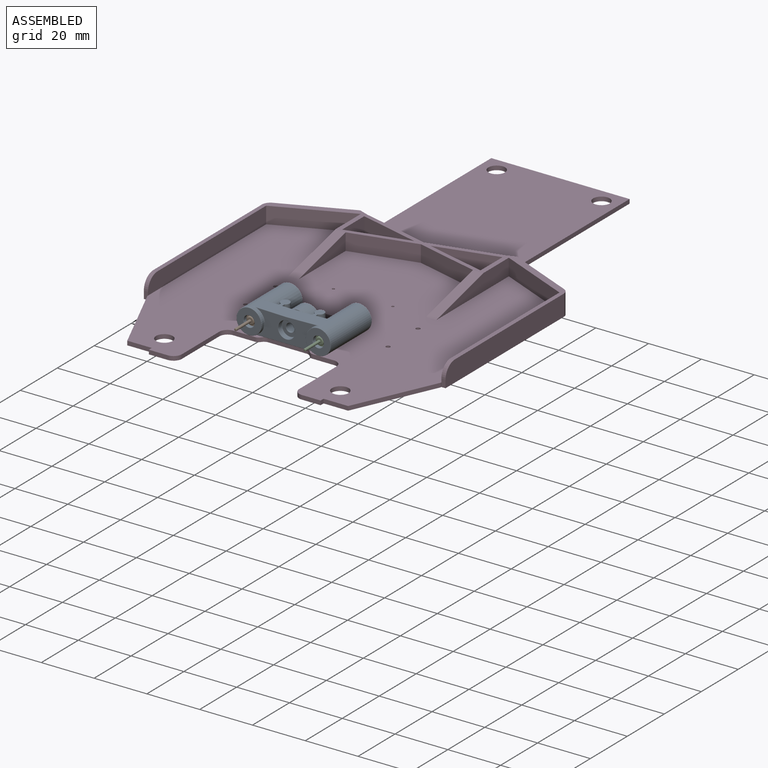
[diagram: assembled view]
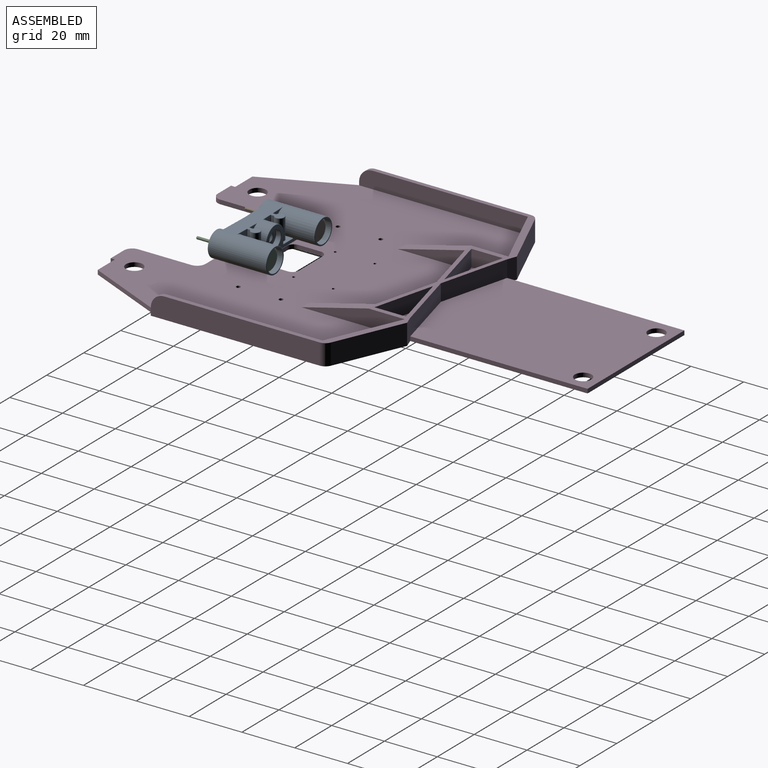
[diagram: assembled view, second angle]
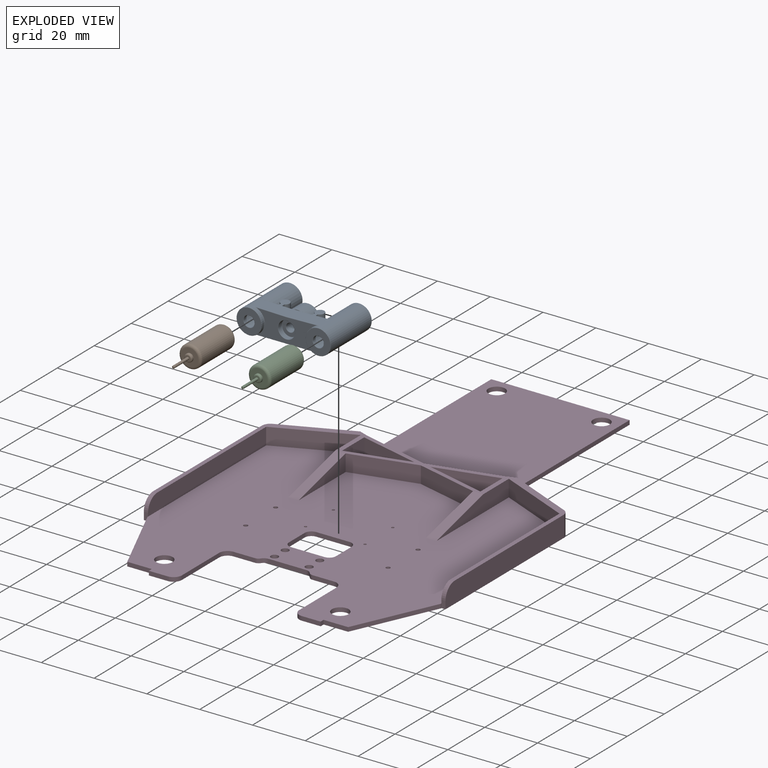
[diagram: exploded view]
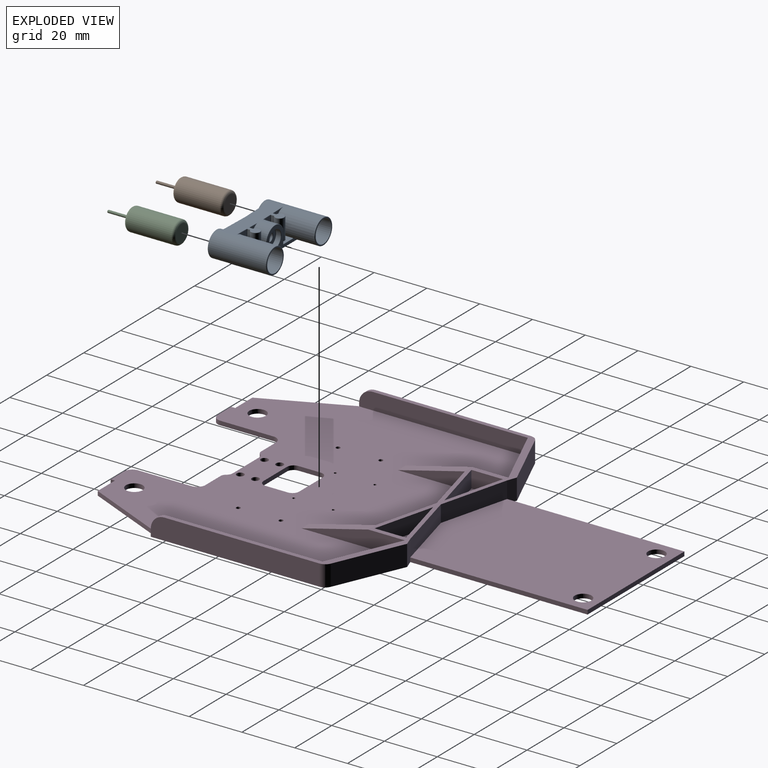
[diagram: exploded view, second angle]
ASSEMBLY  parts=4 mates=3
PART A: 160 faces, bbox 22.3x36.6x10.8 mm
  f0: plane 8.5x8.5mm, normal (1,0,0), area 41.7mm2, adj f118,f159
  f1: plane 8.5x8.5mm, normal (1,0,0), area 41.7mm2, adj f50,f158
  f2: plane 5.63x1.78mm, normal (0,1,0), area 9.9mm2, adj f5,f36,f87,f131,f132,f139,f142
  f3: cylinder r=4.76mm len=9.53mm, axis (-1,0,0), area 101.4mm2, adj f34,f82,f83,f87,f131,f156
  f4: plane 1.94x0.13mm, normal (-1,0,0), area 0.1mm2, adj f82,f86,f152
  f5: bspline ~0.05x0.04mm, area 0mm2, adj f2,f87,f131
  f6: plane 13x10.39mm, normal (0,0.02,1), area 81.7mm2, adj f11,f23,f38,f39,f40,f41,f42,f64
  f7: plane 7.97x4.32mm, normal (1,0,0), area 13.2mm2, adj f10,f11,f31,f78
  f8: cylinder r=1.19mm len=4.83mm, axis (0,0,1), area 36.1mm2, adj f13,f49,f89
  f9: cylinder r=1.75mm len=7.85mm, axis (0,0,-1), area 74.5mm2, adj f69,f70,f76,f77
  f10: cylinder r=0.13mm len=2.25mm, axis (0,-1,0), area 0.4mm2, adj f7,f26,f32,f80
  f11: cylinder r=0.13mm len=4.32mm, axis (0,-1,0.02), area 0.9mm2, adj f6,f7,f38,f75
  f12: plane 2.13x2.13mm, normal (0,0,-1), area 3.6mm2, adj f13,f89
  f13: torus R=1.06mm, axis (0,0,-1), area 1.2mm2, adj f8,f12,f89
  f14: plane 23.09x9.23mm, normal (-1,0,0), area 130.6mm2, adj f29,f42,f47,f53,f124,f136
  f15: extruded ~14.63x9.52mm, area 194.5mm2, adj f18,f23,f30,f31,f35,f43,f46
  f16: plane 7.82x3.6mm, normal (1,0,0), area 10.6mm2, adj f33,f34,f39,f66,f154
  f17: cylinder r=3.17mm len=6.35mm, axis (-1,0,0), area 34.5mm2, adj f52,f57
  f18: plane 24.05x9.3mm, normal (1,0,0), area 53.5mm2, adj f15,f35,f36,f37,f46,f52,f83,f129
  f19: cylinder r=3.17mm len=6.35mm, axis (-1,0,0), area 34.5mm2, adj f53,f54
  f20: plane 6.1x6.1mm, normal (-1,0,0), area 20mm2, adj f54,f55
  f21: cylinder r=1.59mm len=7.29mm, axis (-1,0,0), area 72.7mm2, adj f55,f56
  f22: plane 6.1x6.1mm, normal (1,0,0), area 20mm2, adj f56,f57
  f23: cylinder r=4.76mm len=21.97mm, axis (1,0,0), area 353.4mm2, adj f6,f15,f25,f29,f44,f45,f48
  f24: plane 9.27x9.27mm, normal (1,0,0), area 10.8mm2, adj f43,f44,f158
  f25: plane 25.98x11.51mm, normal (0,0,-1), area 270.9mm2, adj f23,f46,f47,f48,f49,f60,f114,f119
  f26: plane 5.5x5.11mm, normal (0,0,1), area 15.7mm2, adj f10,f30,f33,f37,f71,f77,f81,f154
  f27: cylinder r=2.06mm len=4.13mm, axis (1,0,0), area 17.3mm2, adj f50,f51
  f28: plane 9.27x9.27mm, normal (-1,0,0), area 52.4mm2, adj f45,f51
  f29: torus R=4.89mm, axis (-1,0,0), area 2.7mm2, adj f14,f23,f41,f48
  f30: cylinder r=0.13mm len=5.5mm, axis (-1,0,0), area 1.6mm2, adj f15,f26,f32,f35
  f31: bspline ~8.65x4.99mm, area 2.1mm2, adj f7,f15,f32,f38
  f32: sphere r=0.13mm, area 0mm2, adj f10,f30,f31
  f33: cylinder r=0.13mm len=1.34mm, axis (0,-1,0), area 0.3mm2, adj f16,f26,f68,f154
  f34: torus R=4.89mm, axis (1,0,0), area 1.5mm2, adj f3,f16,f40,f153,f154
  f35: torus R=0.25mm, axis (-1,0,0), area 0.1mm2, adj f15,f18,f30,f37
  f36: cylinder r=0.13mm len=1.93mm, axis (0,0,-1), area 0.4mm2, adj f2,f18,f88,f129
  f37: cylinder r=0.13mm len=5.24mm, axis (0,1,0), area 1mm2, adj f18,f26,f35,f155
  f38: bspline ~1.84x0.25mm, area 0.1mm2, adj f6,f11,f31
  f39: cylinder r=0.13mm len=3.41mm, axis (0,-1,0.02), area 0.7mm2, adj f6,f16,f40,f64
  f40: bspline ~0.78x0.26mm, area 0.1mm2, adj f6,f34,f39,f84
  f41: bspline ~1.84x0.25mm, area 0.1mm2, adj f6,f29,f42
  f42: cylinder r=0.13mm len=11.55mm, axis (0,1,-0.02), area 2.3mm2, adj f6,f14,f41,f124,f151
  f43: bspline ~9.67x7.73mm, area 2.9mm2, adj f15,f24,f44
  f44: torus R=4.64mm, axis (1,0,0), area 3mm2, adj f23,f24,f43
  f45: torus R=4.64mm, axis (-1,0,0), area 5.9mm2, adj f23,f28
  f46: cylinder r=0.13mm len=25.98mm, axis (0,-1,0), area 5mm2, adj f15,f18,f25,f143
  f47: cylinder r=0.13mm len=23.09mm, axis (0,1,0), area 4.6mm2, adj f14,f25,f48,f120
  f48: bspline ~1.62x0.26mm, area 0.1mm2, adj f23,f25,f29,f47
  f49: torus R=1.32mm, axis (0,0,1), area 1.6mm2, adj f8,f25
  f50: torus R=2.19mm, axis (-1,0,0), area 2.6mm2, adj f1,f27
  f51: torus R=2.19mm, axis (-1,0,0), area 2.6mm2, adj f27,f28
  f52: torus R=3.3mm, axis (-1,0,0), area 4mm2, adj f17,f18
  f53: torus R=3.3mm, axis (-1,0,0), area 4mm2, adj f14,f19
  f54: torus R=3.05mm, axis (1,0,0), area 3.9mm2, adj f19,f20
  f55: torus R=1.71mm, axis (1,0,0), area 2mm2, adj f20,f21
  f56: torus R=1.71mm, axis (1,0,0), area 2mm2, adj f21,f22
  f57: torus R=3.05mm, axis (1,0,0), area 3.9mm2, adj f17,f22
  f58: cylinder r=1.19mm len=4.83mm, axis (0,0,-1), area 36.1mm2, adj f60,f61
  f59: plane 2.13x2.13mm, normal (0,0,-1), area 3.6mm2, adj f61
  f60: torus R=1.32mm, axis (0,0,1), area 1.6mm2, adj f25,f58
  f61: torus R=1.06mm, axis (0,0,-1), area 1.4mm2, adj f58,f59
  f62: plane 7.89x1.07mm, normal (0,-1,0.02), area 7.8mm2, adj f72,f76,f78,f81
  f63: plane 7.88x1.2mm, normal (0,1,-0.02), area 8.5mm2, adj f65,f66,f70,f71
  f64: torus R=0.25mm, axis (0,0.02,1), area 0.1mm2, adj f6,f39,f65,f66
  f65: cylinder r=0.13mm len=1.14mm, axis (-1,0,0), area 0.2mm2, adj f6,f63,f64,f67
  f66: cylinder r=0.13mm len=7.82mm, axis (0,-0.02,-1), area 1.6mm2, adj f16,f63,f64,f68
  f67: bspline ~0.29x0.21mm, area 0mm2, adj f6,f65,f69,f70
  f68: sphere r=0.13mm, area 0mm2, adj f33,f66,f71
  f69: bspline ~3.49x3.41mm, area 1.8mm2, adj f6,f9,f67,f73
  f70: bspline ~7.85x0.25mm, area 1.1mm2, adj f9,f63,f67,f74
  f71: cylinder r=0.13mm len=1.04mm, axis (-1,0,0), area 0.2mm2, adj f26,f63,f68,f74
  f72: cylinder r=0.13mm len=0.96mm, axis (1,0,0), area 0.2mm2, adj f6,f62,f73,f75
  f73: bspline ~0.27x0.25mm, area 0mm2, adj f6,f69,f72,f76
  f74: sphere r=0.13mm, area 0mm2, adj f70,f71,f77
  f75: torus R=0.25mm, axis (0,0.02,1), area 0.1mm2, adj f6,f11,f72,f78
  f76: bspline ~7.9x0.27mm, area 1.2mm2, adj f9,f62,f73,f79
  f77: torus R=1.87mm, axis (0,0,-1), area 1.9mm2, adj f9,f26,f74,f79
  f78: cylinder r=0.13mm len=7.86mm, axis (0,0.02,1), area 1.6mm2, adj f7,f62,f75,f80
  f79: sphere r=0.13mm, area 0mm2, adj f76,f77,f81
  f80: sphere r=0.13mm, area 0mm2, adj f10,f78,f81
  f81: cylinder r=0.13mm len=1.04mm, axis (1,0,0), area 0.2mm2, adj f26,f62,f79,f80
  f82: torus R=4.64mm, axis (1,0,0), area 0.5mm2, adj f3,f4,f84,f85,f91,f92
  f83: torus R=4.64mm, axis (-1,0,0), area 3.6mm2, adj f3,f18,f88,f157
  f84: bspline ~0.08x0.08mm, area 0mm2, adj f40,f82,f85
  f85: bspline ~0.88x0.16mm, area 0mm2, adj f6,f82,f84,f86
  f86: cylinder r=0.06mm len=1.08mm, axis (0,1,-0.02), area 0.1mm2, adj f4,f6,f85,f151,f152
  f87: cylinder r=0.06mm len=5.5mm, axis (-1,0,0), area 0.1mm2, adj f2,f3,f5,f88
  f88: bspline ~0.15x0.13mm, area 0mm2, adj f36,f83,f87
  f89: torus R=1.06mm, axis (0,0,-1), area 0.3mm2, adj f8,f12,f13
  f90: torus R=1.06mm, axis (0,0,-1), area 0.3mm2, adj f144,f145,f149
  f91: bspline ~0.89x0.17mm, area 0mm2, adj f82,f92,f151,f152
  f92: bspline ~0.08x0.08mm, area 0mm2, adj f82,f91,f126
  f93: cylinder r=0.13mm len=1.04mm, axis (1,0,0), area 0.2mm2, adj f94,f95,f112,f139
  f94: sphere r=0.13mm, area 0mm2, adj f93,f96,f147
  f95: sphere r=0.13mm, area 0mm2, adj f93,f97,f98
  f96: cylinder r=0.13mm len=7.86mm, axis (0,-0.02,1), area 1.6mm2, adj f94,f99,f112,f150
  f97: torus R=1.87mm, axis (0,0,-1), area 1.9mm2, adj f95,f100,f139,f148
  f98: bspline ~7.9x0.27mm, area 1.2mm2, adj f95,f101,f112,f148
  f99: torus R=0.25mm, axis (0,-0.02,1), area 0.1mm2, adj f96,f102,f146,f151
  f100: sphere r=0.13mm, area 0mm2, adj f97,f103,f104
  f101: bspline ~0.27x0.25mm, area 0mm2, adj f98,f102,f105,f151
  f102: cylinder r=0.13mm len=0.96mm, axis (1,0,0), area 0.2mm2, adj f99,f101,f112,f151
  f103: cylinder r=0.13mm len=1.04mm, axis (-1,0,0), area 0.2mm2, adj f100,f106,f111,f139
  f104: bspline ~7.85x0.25mm, area 1.1mm2, adj f100,f107,f111,f148
  f105: bspline ~3.49x3.41mm, area 1.8mm2, adj f101,f107,f148,f151
  f106: sphere r=0.13mm, area 0mm2, adj f103,f108,f132
  f107: bspline ~0.29x0.21mm, area 0mm2, adj f104,f105,f109,f151
  f108: cylinder r=0.13mm len=7.82mm, axis (0,0.02,-1), area 1.6mm2, adj f106,f110,f111,f142
  f109: cylinder r=0.13mm len=1.14mm, axis (-1,0,0), area 0.2mm2, adj f107,f110,f111,f151
  f110: torus R=0.25mm, axis (0,-0.02,1), area 0.1mm2, adj f108,f109,f127,f151
  f111: plane 7.88x1.2mm, normal (0,-1,-0.02), area 8.5mm2, adj f103,f104,f108,f109
  f112: plane 7.89x1.07mm, normal (0,1,0.02), area 7.8mm2, adj f93,f96,f98,f102
  f113: torus R=1.06mm, axis (0,0,-1), area 1.4mm2, adj f115,f116
  f114: torus R=1.32mm, axis (0,0,1), area 1.6mm2, adj f25,f116
  f115: plane 2.13x2.13mm, normal (0,0,-1), area 3.6mm2, adj f113
  f116: cylinder r=1.19mm len=4.83mm, axis (0,0,-1), area 36.1mm2, adj f113,f114
  f117: torus R=2.19mm, axis (-1,0,0), area 2.6mm2, adj f137,f138
  f118: torus R=2.19mm, axis (-1,0,0), area 2.6mm2, adj f0,f138
  f119: torus R=1.32mm, axis (0,0,1), area 1.6mm2, adj f25,f149
  f120: bspline ~1.62x0.26mm, area 0.1mm2, adj f25,f47,f136,f141
  f121: torus R=4.64mm, axis (-1,0,0), area 5.9mm2, adj f137,f141
  f122: torus R=4.64mm, axis (1,0,0), area 3mm2, adj f123,f140,f141
  f123: bspline ~9.62x7.73mm, area 2.9mm2, adj f122,f140,f143
  f124: cylinder r=0.13mm len=11.34mm, axis (0,-1,-0.02), area 2.3mm2, adj f14,f42,f125,f151
  f125: bspline ~1.84x0.25mm, area 0.1mm2, adj f124,f136,f151
  f126: bspline ~0.78x0.26mm, area 0.1mm2, adj f92,f127,f131,f151
  f127: cylinder r=0.13mm len=3.41mm, axis (0,1,0.02), area 0.7mm2, adj f110,f126,f142,f151
  f128: bspline ~1.84x0.25mm, area 0.1mm2, adj f134,f146,f151
  f129: cylinder r=0.13mm len=5.24mm, axis (0,-1,0), area 1mm2, adj f18,f36,f130,f139
  f130: torus R=0.25mm, axis (-1,0,0), area 0.1mm2, adj f18,f129,f135,f143
  f131: torus R=4.89mm, axis (1,0,0), area 1.5mm2, adj f2,f3,f5,f126,f142
  f132: cylinder r=0.13mm len=1.34mm, axis (0,1,0), area 0.3mm2, adj f2,f106,f139,f142
  f133: sphere r=0.13mm, area 0mm2, adj f134,f135,f147
  f134: bspline ~8.65x4.99mm, area 2.1mm2, adj f128,f133,f143,f150
  f135: cylinder r=0.13mm len=5.5mm, axis (-1,0,0), area 1.6mm2, adj f130,f133,f139,f143
  f136: torus R=4.89mm, axis (-1,0,0), area 2.7mm2, adj f14,f120,f125,f141
  f137: plane 9.27x9.27mm, normal (-1,0,0), area 52.4mm2, adj f117,f121
  f138: cylinder r=2.06mm len=4.13mm, axis (1,0,0), area 17.3mm2, adj f117,f118
  f139: plane 5.5x5.11mm, normal (0,0,1), area 15.7mm2, adj f2,f93,f97,f103,f129,f132,f135,f147
  f140: plane 9.27x9.27mm, normal (1,0,0), area 10.8mm2, adj f122,f123,f159
  f141: cylinder r=4.76mm len=21.97mm, axis (1,0,0), area 353.4mm2, adj f25,f120,f121,f122,f136,f143,f151
  f142: plane 7.82x3.6mm, normal (1,0,0), area 10.6mm2, adj f2,f108,f127,f131,f132
  f143: extruded ~14.63x9.52mm, area 194.5mm2, adj f18,f46,f123,f130,f134,f135,f141
  f144: torus R=1.06mm, axis (0,0,-1), area 1.2mm2, adj f90,f145,f149
  f145: plane 2.13x2.13mm, normal (0,0,-1), area 3.6mm2, adj f90,f144
  f146: cylinder r=0.13mm len=4.32mm, axis (0,1,0.02), area 0.9mm2, adj f99,f128,f150,f151
  f147: cylinder r=0.13mm len=2.25mm, axis (0,1,0), area 0.4mm2, adj f94,f133,f139,f150
  f148: cylinder r=1.75mm len=7.85mm, axis (0,0,-1), area 74.5mm2, adj f97,f98,f104,f105
  f149: cylinder r=1.19mm len=4.83mm, axis (0,0,1), area 36.1mm2, adj f90,f119,f144
  f150: plane 7.97x4.32mm, normal (1,0,0), area 13.2mm2, adj f96,f134,f146,f147
  f151: plane 13x10.39mm, normal (0,-0.02,1), area 81.7mm2, adj f6,f42,f86,f91,f99,f101,f102,f105
  f152: cylinder r=0.06mm len=0.86mm, axis (0,-1,-0.02), area 0.1mm2, adj f4,f86,f91,f151
  f153: bspline ~0.05x0.04mm, area 0mm2, adj f34,f154,f156
  f154: plane 5.63x1.78mm, normal (0,-1,0), area 9.9mm2, adj f16,f26,f33,f34,f153,f155,f156
  f155: cylinder r=0.13mm len=1.93mm, axis (0,0,-1), area 0.4mm2, adj f18,f37,f154,f157
  f156: cylinder r=0.06mm len=5.5mm, axis (-1,0,0), area 0.1mm2, adj f3,f153,f154,f157
  f157: bspline ~0.15x0.13mm, area 0mm2, adj f83,f155,f156
  f158: cylinder r=4.25mm len=20.64mm, axis (1,0,0), area 551.1mm2, adj f1,f24
  f159: cylinder r=4.25mm len=20.64mm, axis (1,0,0), area 551.1mm2, adj f0,f140
PART B: 11 faces, bbox 9.2x9.2x28 mm
  f0: cylinder r=4.25mm len=17mm, axis (0,0,-1), area 454mm2, adj f3,f4
  f1: plane 6.5x6.5mm, normal (0,0,1), area 26.1mm2, adj f4,f5
  f2: plane 6.5x6.5mm, normal (0,0,-1), area 33.2mm2, adj f3
  f3: torus R=3.25mm, axis (0,0,1), area 38.4mm2, adj f0,f2
  f4: torus R=3.25mm, axis (0,0,1), area 38.4mm2, adj f0,f1
  f5: cylinder r=1.5mm len=3mm, axis (0,0,-1), area 4.7mm2, adj f1,f7
  f6: plane 2x2mm, normal (0,0,1), area 2.4mm2, adj f7,f8
  f7: torus R=1mm, axis (0,0,1), area 6.5mm2, adj f5,f6
  f8: cylinder r=0.5mm len=7.75mm, axis (0,0,-1), area 24.3mm2, adj f6,f10
  f9: plane 0.5x0.5mm, normal (0,0,1), area 0.2mm2, adj f10
  f10: torus R=0.25mm, axis (0,0,1), area 1mm2, adj f8,f9
PART C: same geometry as B
PART D: 88 faces, bbox 114.3x176.2x7.9 mm
  f0: plane 176.21x114.3mm, normal (0,0,-1), area 13521.7mm2, adj f2,f3,f6,f7,f8,f9,f10,f11
  f1: plane 111.13x108.24mm, normal (0,0,1), area 8839.8mm2, adj f2,f3,f6,f7,f12,f13,f14,f15
  f2: plane 8.16x1.59mm, normal (0,-1,0), area 13mm2, adj f0,f1,f50,f68
  f3: plane 7.14x1.59mm, normal (0,-1,0), area 11.3mm2, adj f0,f1,f16,f57
  f4: plane 114.3x72.79mm, normal (0,0,1), area 558.6mm2, adj f8,f9,f10,f11,f18,f19,f27,f28
  f5: plane 73.93x52.39mm, normal (0,0,1), area 3632.8mm2, adj f37,f38,f63,f64,f65,f74,f75
  f6: plane 8.16x1.59mm, normal (0,-1,0), area 13mm2, adj f0,f1,f49,f69
  f7: plane 7.14x1.59mm, normal (0,-1,0), area 11.3mm2, adj f0,f1,f17,f55
  f8: plane 25.54x11.04mm, normal (-0.4,0.92,0), area 220.9mm2, adj f0,f4,f18,f67
  f9: plane 63.91x7.94mm, normal (-1,0,0), area 501.7mm2, adj f0,f4,f18,f56,f62
  f10: plane 63.91x7.94mm, normal (1,0,0), area 501.7mm2, adj f0,f4,f19,f51,f61
  f11: plane 25.54x11.04mm, normal (0.4,0.92,0), area 220.9mm2, adj f0,f4,f19,f66
  f12: cylinder r=0.79mm len=1.59mm, axis (0,0,1), area 7.9mm2, adj f0,f1
  f13: cylinder r=0.79mm len=1.59mm, axis (0,0,1), area 7.9mm2, adj f0,f1
  f14: plane 20.15x1.59mm, normal (-1,0,0), area 32mm2, adj f0,f1,f17,f50
  f15: plane 20.15x1.59mm, normal (1,0,0), area 32mm2, adj f0,f1,f16,f49
  f16: cylinder r=3.17mm len=3.18mm, axis (0,0,1), area 7.9mm2, adj f0,f1,f3,f15
  f17: cylinder r=3.17mm len=3.18mm, axis (0,0,-1), area 7.9mm2, adj f0,f1,f7,f14
  f18: cylinder r=3.17mm len=7.94mm, axis (0,0,1), area 29.3mm2, adj f0,f4,f8,f9
  f19: cylinder r=3.17mm len=7.94mm, axis (0,0,1), area 29.3mm2, adj f0,f4,f10,f11
  f20: plane 8.46x1.59mm, normal (1,0,0), area 13.4mm2, adj f0,f1,f24,f81
  f21: plane 8.46x1.59mm, normal (-1,0,0), area 13.4mm2, adj f0,f1,f22,f80
  f22: cylinder r=2.54mm len=2.54mm, axis (0,0,1), area 6.3mm2, adj f0,f1,f21,f23
  f23: plane 12.7x1.59mm, normal (0,-1,0), area 20.2mm2, adj f0,f1,f22,f24
  f24: cylinder r=2.54mm len=2.54mm, axis (0,0,1), area 6.3mm2, adj f0,f1,f20,f23
  f25: cylinder r=0.79mm len=1.59mm, axis (0,0,-1), area 7.9mm2, adj f0,f1
  f26: cylinder r=0.79mm len=1.59mm, axis (0,0,-1), area 7.9mm2, adj f0,f1
  f27: plane 63.91x6.35mm, normal (1,0,0), area 400.3mm2, adj f1,f4,f28,f56,f62
  f28: plane 27.53x11.91mm, normal (0.4,-0.92,0), area 190.5mm2, adj f1,f4,f27,f33
  f29: plane 27.53x11.91mm, normal (-0.4,-0.92,0), area 190.5mm2, adj f1,f4,f30,f36
  f30: plane 63.91x6.35mm, normal (-1,0,0), area 400.3mm2, adj f1,f4,f29,f51,f61
  f31: plane 23.12x6.35mm, normal (0.25,-0.97,0), area 151.6mm2, adj f4,f32,f42,f43
  f32: plane 11.93x6.35mm, normal (-1,0,0), area 75.8mm2, adj f4,f31,f42,f43
  f33: plane 39.18x6.35mm, normal (-1,0,0), area 168.1mm2, adj f1,f4,f28,f47
  f34: plane 24.12x6.35mm, normal (0.25,-0.97,0), area 158.2mm2, adj f1,f4,f35,f46
  f35: plane 24.12x6.35mm, normal (-0.25,-0.97,0), area 158.2mm2, adj f1,f4,f34,f45
  f36: plane 39.18x6.35mm, normal (1,0,0), area 168.1mm2, adj f1,f4,f29,f48
  f37: plane 26.19x6.76mm, normal (-0.25,0.97,0), area 171.8mm2, adj f4,f5,f38,f66
  f38: plane 26.19x6.76mm, normal (0.25,0.97,0), area 171.8mm2, adj f4,f5,f37,f67
  f39: plane 11.93x6.35mm, normal (1,0,0), area 75.8mm2, adj f4,f40,f41,f44
  f40: plane 23.12x6.35mm, normal (-0.25,-0.97,0), area 151.6mm2, adj f4,f39,f41,f44
  f41: plane 23.12x6.35mm, normal (-0.25,0.97,0), area 151.6mm2, adj f4,f39,f40,f44
  f42: plane 23.12x6.35mm, normal (0.25,0.97,0), area 151.6mm2, adj f4,f31,f32,f43
  f43: plane 23.12x11.93mm, normal (0,0,1), area 137.9mm2, adj f31,f32,f42
  f44: plane 23.12x11.93mm, normal (0,0,1), area 137.9mm2, adj f39,f40,f41
  f45: plane 25.4x6.35mm, normal (-1,0,0), area 80.6mm2, adj f1,f35,f48
  f46: plane 25.4x6.35mm, normal (1,0,0), area 80.6mm2, adj f1,f34,f47
  f47: plane 25.4x6.35mm, normal (0,-0.24,0.97), area 102.3mm2, adj f1,f4,f33,f46
  f48: plane 25.4x6.35mm, normal (0,-0.24,0.97), area 102.3mm2, adj f1,f4,f36,f45
  f49: cylinder r=3.17mm len=3.18mm, axis (0,0,-1), area 7.9mm2, adj f0,f1,f6,f15
  f50: cylinder r=3.17mm len=3.18mm, axis (0,0,1), area 7.9mm2, adj f0,f1,f2,f14
  f51: plane 2.86x1.59mm, normal (0,-1,0), area 4.5mm2, adj f0,f10,f30,f52,f61
  f52: plane 1.59x0.34mm, normal (1,0,0), area 0.5mm2, adj f0,f1,f51,f53
  f53: plane 30.5x13.73mm, normal (0.91,-0.41,0), area 53.1mm2, adj f0,f1,f52,f54
  f54: plane 9.29x1.59mm, normal (0,-1,0), area 14.8mm2, adj f0,f1,f53,f55
  f55: plane 1.59x1.59mm, normal (1,0,0), area 2.5mm2, adj f0,f1,f7,f54
  f56: plane 2.86x1.59mm, normal (0,-1,0), area 4.5mm2, adj f0,f9,f27,f60,f62
  f57: plane 1.59x1.59mm, normal (-1,0,0), area 2.5mm2, adj f0,f1,f3,f58
  f58: plane 9.29x1.59mm, normal (0,-1,0), area 14.8mm2, adj f0,f1,f57,f59
  f59: plane 30.5x13.73mm, normal (-0.91,-0.41,0), area 53.1mm2, adj f0,f1,f58,f60
  f60: plane 1.59x0.34mm, normal (-1,0,0), area 0.5mm2, adj f0,f1,f56,f59
  f61: cylinder r=5.08mm len=5.08mm, axis (1,0,0), area 12.7mm2, adj f4,f10,f30,f51
  f62: cylinder r=5.08mm len=5.08mm, axis (1,0,0), area 12.7mm2, adj f4,f9,f27,f56
  f63: plane 67.17x1.59mm, normal (-1,0,0), area 106.6mm2, adj f0,f5,f64,f67
  f64: plane 52.39x1.59mm, normal (0,1,0), area 83.2mm2, adj f0,f5,f63,f65
  f65: plane 67.17x1.59mm, normal (1,0,0), area 106.6mm2, adj f0,f5,f64,f66
  f66: plane 7.94x3.5mm, normal (-0.34,0.94,0), area 29.5mm2, adj f0,f4,f11,f37,f65
  f67: plane 7.94x3.5mm, normal (0.34,0.94,0), area 29.5mm2, adj f0,f4,f8,f38,f63
  f68: cylinder r=2mm len=1.66mm, axis (0,0,-1), area 3.1mm2, adj f0,f1,f2,f83
  f69: cylinder r=2mm len=1.66mm, axis (0,0,1), area 3.1mm2, adj f0,f1,f6,f82
  f70: cylinder r=0.5mm len=1.59mm, axis (0,0,1), area 5mm2, adj f0,f1
  f71: cylinder r=0.5mm len=1.59mm, axis (0,0,1), area 5mm2, adj f0,f1
  f72: cylinder r=0.5mm len=1.59mm, axis (0,0,1), area 5mm2, adj f0,f1
  f73: cylinder r=0.5mm len=1.59mm, axis (0,0,1), area 5mm2, adj f0,f1
  f74: cylinder r=3.17mm len=6.35mm, axis (0,0,1), area 31.7mm2, adj f0,f5
  f75: cylinder r=3.17mm len=6.35mm, axis (0,0,1), area 31.7mm2, adj f0,f5
  f76: cylinder r=3.17mm len=6.35mm, axis (0,0,1), area 31.7mm2, adj f0,f1
  f77: cylinder r=3.17mm len=6.35mm, axis (0,0,1), area 31.7mm2, adj f0,f1
  f78: plane 12.7x1.59mm, normal (0,1,0), area 20.2mm2, adj f0,f1,f80,f81
  f79: plane 14.25x1.59mm, normal (0,-1,0), area 22.6mm2, adj f0,f1,f82,f83
  f80: cylinder r=2.54mm len=2.54mm, axis (0,0,1), area 6.3mm2, adj f0,f1,f21,f78
  f81: cylinder r=2.54mm len=2.54mm, axis (0,0,-1), area 6.3mm2, adj f0,f1,f20,f78
  f82: cylinder r=2.54mm len=2.11mm, axis (0,0,1), area 3.9mm2, adj f0,f1,f69,f79
  f83: cylinder r=2.54mm len=2.11mm, axis (0,0,-1), area 3.9mm2, adj f0,f1,f68,f79
  f84: cylinder r=1.4mm len=2.79mm, axis (0,0,1), area 13.9mm2, adj f0,f1
  f85: cylinder r=1.4mm len=2.79mm, axis (0,0,1), area 13.9mm2, adj f0,f1
  f86: cylinder r=1.4mm len=2.79mm, axis (0,0,1), area 13.9mm2, adj f0,f1
  f87: cylinder r=1.4mm len=2.79mm, axis (0,0,1), area 13.9mm2, adj f0,f1
PLACE A rot(axis=(0,0,1),90deg) t=(-12.93,-60.21,5.99)mm
PLACE B rot(axis=(1,0,0),90deg) t=(-26.03,-47,5.99)mm
PLACE C rot(axis=(1,0,0),90deg) t=(0.18,-46.97,5.99)mm
PLACE D t=(-12.93,-5.1,-0.36)mm
MATE fastened C.f0 <-> A.f27  axis (0,-1,0) through (0.18,-65.97,5.99)mm
MATE fastened A.f25 <-> D.f1  axis (0,0,-1) through (-12.93,-60.22,1.23)mm
MATE fastened A.f117 <-> B.f0  axis (0,-1,0) through (-26.03,-66,5.99)mm
